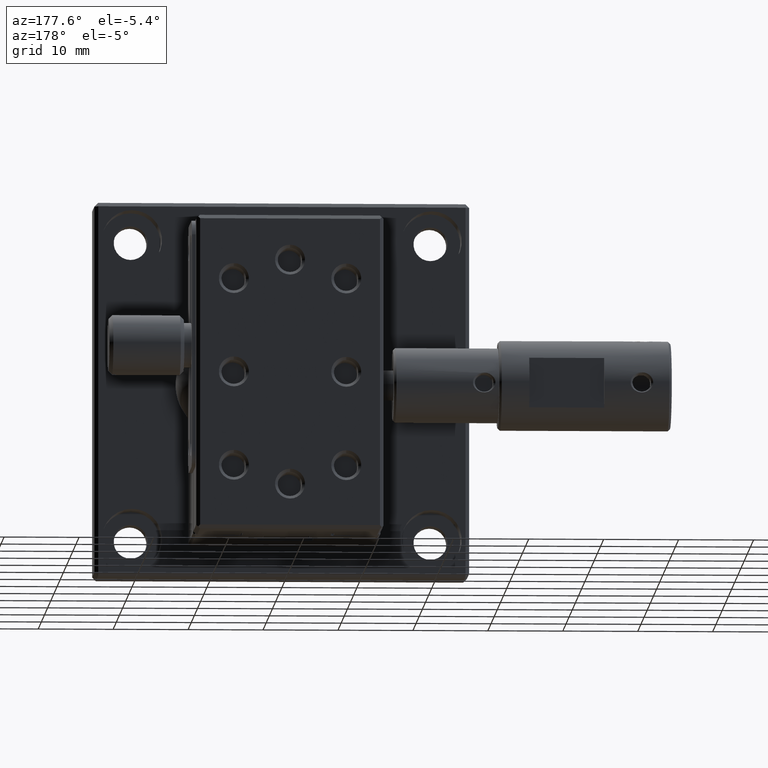
[diagram: clean part render]
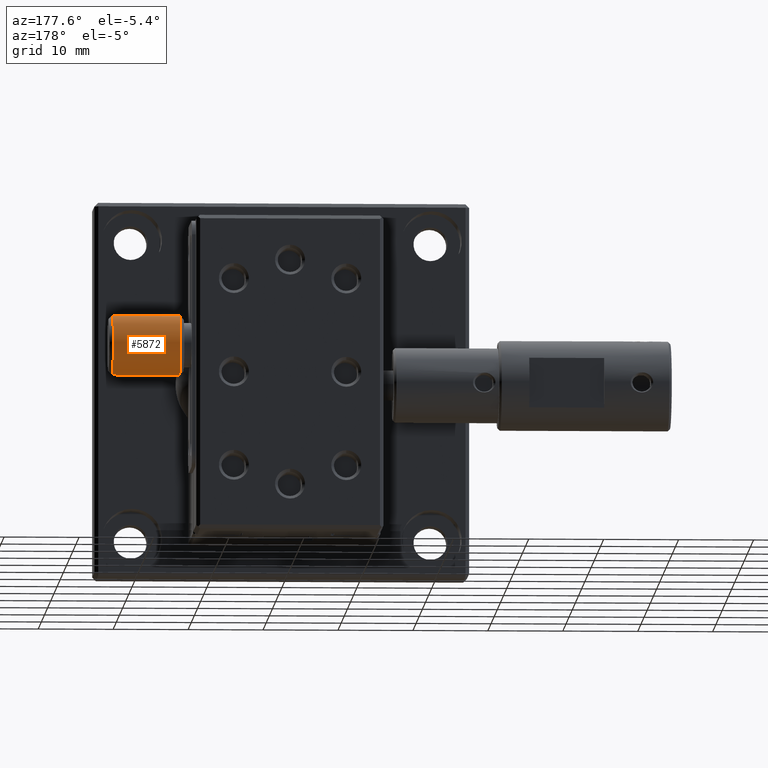
[diagram: same view with one face highlighted and labeled with its STEP entity id]
A machine part, auxiliary view. The second image highlights one B-rep face of the part: STEP entity #5872.
In plain terms, the highlighted cylindrical surface (bore or boss wall) has radius 4 mm, axis along (1, 0, 0).
Its self-contained STEP definition (entity closure, byte-faithful):
#66 = EDGE_CURVE ( 'NONE', #2022, #6184, #3628, .T. ) ;
#86 = CIRCLE ( 'NONE', #8296, 4.000000000000000000 ) ;
#221 = FACE_OUTER_BOUND ( 'NONE', #4535, .T. ) ;
#337 = EDGE_CURVE ( 'NONE', #5713, #1153, #4695, .T. ) ;
#357 = AXIS2_PLACEMENT_3D ( 'NONE', #8109, #2874, #2328 ) ;
#384 = EDGE_CURVE ( 'NONE', #1489, #5310, #2408, .T. ) ;
#557 = DIRECTION ( 'NONE',  ( 0.000000000000000000, 0.000000000000000000, -1.000000000000000000 ) ) ;
#788 = DIRECTION ( 'NONE',  ( -1.000000000000000000, -0.000000000000000000, -0.000000000000000000 ) ) ;
#1073 = AXIS2_PLACEMENT_3D ( 'NONE', #3900, #788, #7789 ) ;
#1153 = VERTEX_POINT ( 'NONE', #6237 ) ;
#1380 = DIRECTION ( 'NONE',  ( 1.000000000000000000, 0.000000000000000000, 0.000000000000000000 ) ) ;
#1461 = ORIENTED_EDGE ( 'NONE', *, *, #6727, .F. ) ;
#1489 = VERTEX_POINT ( 'NONE', #6853 ) ;
#1654 = CARTESIAN_POINT ( 'NONE',  ( 14.50000000005502443, 20.20000000000000284, 0.000000000000000000 ) ) ;
#1712 = CARTESIAN_POINT ( 'NONE',  ( 23.00000000000000000, 20.20000000000000284, 4.000000000000000000 ) ) ;
#1857 = CIRCLE ( 'NONE', #4124, 4.000000000000000000 ) ;
#2022 = VERTEX_POINT ( 'NONE', #4307 ) ;
#2096 = ORIENTED_EDGE ( 'NONE', *, *, #5362, .F. ) ;
#2328 = DIRECTION ( 'NONE',  ( 0.000000000000000000, 0.000000000000000000, -1.000000000000000000 ) ) ;
#2362 = ORIENTED_EDGE ( 'NONE', *, *, #66, .T. ) ;
#2366 = CARTESIAN_POINT ( 'NONE',  ( 23.00000000000000000, 20.70000000000000284, 0.03137303340311391880 ) ) ;
#2408 = CIRCLE ( 'NONE', #3081, 4.000000000000000000 ) ;
#2490 = EDGE_LOOP ( 'NONE', ( #2096 ) ) ;
#2553 = CARTESIAN_POINT ( 'NONE',  ( 23.00000000000000000, 20.70000000000000284, 0.03137303340311389799 ) ) ;
#2784 = EDGE_CURVE ( 'NONE', #1153, #5310, #3219, .T. ) ;
#2874 = DIRECTION ( 'NONE',  ( 1.000000000000000000, 0.000000000000000000, 0.000000000000000000 ) ) ;
#3037 = CARTESIAN_POINT ( 'NONE',  ( 14.50000000005502443, 20.20000000000000284, 4.000000000000000000 ) ) ;
#3081 = AXIS2_PLACEMENT_3D ( 'NONE', #1712, #6220, #4357 ) ;
#3219 = LINE ( 'NONE', #2553, #4858 ) ;
#3261 = FACE_OUTER_BOUND ( 'NONE', #2490, .T. ) ;
#3285 = DIRECTION ( 'NONE',  ( 1.000000000000000000, 0.000000000000000000, -0.000000000000000000 ) ) ;
#3320 = CARTESIAN_POINT ( 'NONE',  ( 23.00000000000000000, 20.20000000000000284, 4.000000000000000000 ) ) ;
#3485 = AXIS2_PLACEMENT_3D ( 'NONE', #7366, #5493, #6725 ) ;
#3575 = VERTEX_POINT ( 'NONE', #8178 ) ;
#3628 = CIRCLE ( 'NONE', #1073, 4.000000000000000000 ) ;
#3900 = CARTESIAN_POINT ( 'NONE',  ( 23.50000000000000000, 20.20000000000000284, 4.000000000000000000 ) ) ;
#3929 = DIRECTION ( 'NONE',  ( -1.000000000000000000, -0.000000000000000000, 0.000000000000000000 ) ) ;
#4124 = AXIS2_PLACEMENT_3D ( 'NONE', #3320, #1380, #5880 ) ;
#4159 = EDGE_CURVE ( 'NONE', #6184, #3575, #5041, .T. ) ;
#4293 = LINE ( 'NONE', #6323, #7205 ) ;
#4307 = CARTESIAN_POINT ( 'NONE',  ( 23.49999999999782929, 19.70000000000000284, 0.03137303340390137224 ) ) ;
#4356 = DIRECTION ( 'NONE',  ( -1.000000000000000000, -0.000000000000000000, -0.000000000000000000 ) ) ;
#4357 = DIRECTION ( 'NONE',  ( 0.000000000000000000, 0.000000000000000000, -1.000000000000000000 ) ) ;
#4437 = ORIENTED_EDGE ( 'NONE', *, *, #384, .F. ) ;
#4472 = CARTESIAN_POINT ( 'NONE',  ( 23.49999999999782574, 20.70000000000000284, 7.968626966596101369 ) ) ;
#4535 = EDGE_LOOP ( 'NONE', ( #4437, #7674, #2362, #8197, #1461, #7178, #8055, #5377 ) ) ;
#4695 = CIRCLE ( 'NONE', #3485, 4.000000000000000000 ) ;
#4698 = CARTESIAN_POINT ( 'NONE',  ( 23.00000000000000000, 20.70000000000000284, 7.968626966596889183 ) ) ;
#4770 = VERTEX_POINT ( 'NONE', #4698 ) ;
#4797 = VECTOR ( 'NONE', #3285, 1000.000000000000000 ) ;
#4858 = VECTOR ( 'NONE', #3929, 1000.000000000000000 ) ;
#4976 = DIRECTION ( 'NONE',  ( -1.000000000000000000, -0.000000000000000000, -0.000000000000000000 ) ) ;
#5041 = LINE ( 'NONE', #7585, #6881 ) ;
#5310 = VERTEX_POINT ( 'NONE', #2366 ) ;
#5331 = EDGE_CURVE ( 'NONE', #1489, #2022, #4293, .T. ) ;
#5353 = CYLINDRICAL_SURFACE ( 'NONE', #357, 4.000000000000000000 ) ;
#5362 = EDGE_CURVE ( 'NONE', #7435, #7435, #86, .T. ) ;
#5377 = ORIENTED_EDGE ( 'NONE', *, *, #2784, .T. ) ;
#5493 = DIRECTION ( 'NONE',  ( -1.000000000000000000, -0.000000000000000000, -0.000000000000000000 ) ) ;
#5713 = VERTEX_POINT ( 'NONE', #4472 ) ;
#5845 = LINE ( 'NONE', #6489, #4797 ) ;
#5872 = ADVANCED_FACE ( 'NONE', ( #3261, #221 ), #5353, .T. ) ;
#5880 = DIRECTION ( 'NONE',  ( 0.000000000000000000, 0.000000000000000000, -1.000000000000000000 ) ) ;
#6149 = EDGE_CURVE ( 'NONE', #4770, #5713, #5845, .T. ) ;
#6184 = VERTEX_POINT ( 'NONE', #7120 ) ;
#6220 = DIRECTION ( 'NONE',  ( 1.000000000000000000, 0.000000000000000000, 0.000000000000000000 ) ) ;
#6237 = CARTESIAN_POINT ( 'NONE',  ( 23.49999999999704414, 20.70000000000000284, 0.03137303340311391880 ) ) ;
#6323 = CARTESIAN_POINT ( 'NONE',  ( 23.00000000000000000, 19.70000000000000284, 0.03137303340311307920 ) ) ;
#6489 = CARTESIAN_POINT ( 'NONE',  ( 23.00000000000000000, 20.70000000000000284, 7.968626966596890959 ) ) ;
#6725 = DIRECTION ( 'NONE',  ( 0.000000000000000000, 0.000000000000000000, -1.000000000000000000 ) ) ;
#6727 = EDGE_CURVE ( 'NONE', #4770, #3575, #1857, .T. ) ;
#6853 = CARTESIAN_POINT ( 'NONE',  ( 23.00000000000000000, 19.70000000000000284, 0.03137303340311350941 ) ) ;
#6881 = VECTOR ( 'NONE', #4356, 1000.000000000000000 ) ;
#7120 = CARTESIAN_POINT ( 'NONE',  ( 23.49999999999704414, 19.70000000000000284, 7.968626966596889183 ) ) ;
#7178 = ORIENTED_EDGE ( 'NONE', *, *, #6149, .T. ) ;
#7205 = VECTOR ( 'NONE', #7604, 1000.000000000000000 ) ;
#7366 = CARTESIAN_POINT ( 'NONE',  ( 23.50000000000000000, 20.20000000000000284, 4.000000000000000000 ) ) ;
#7435 = VERTEX_POINT ( 'NONE', #1654 ) ;
#7585 = CARTESIAN_POINT ( 'NONE',  ( 23.00000000000000000, 19.70000000000000284, 7.968626966596890959 ) ) ;
#7604 = DIRECTION ( 'NONE',  ( 1.000000000000000000, 0.000000000000000000, 0.000000000000000000 ) ) ;
#7674 = ORIENTED_EDGE ( 'NONE', *, *, #5331, .T. ) ;
#7789 = DIRECTION ( 'NONE',  ( 0.000000000000000000, 8.673617379884035472E-16, -1.000000000000000000 ) ) ;
#8055 = ORIENTED_EDGE ( 'NONE', *, *, #337, .T. ) ;
#8109 = CARTESIAN_POINT ( 'NONE',  ( 24.00000000000000000, 20.20000000000000284, 4.000000000000000000 ) ) ;
#8178 = CARTESIAN_POINT ( 'NONE',  ( 23.00000000000000000, 19.70000000000000284, 7.968626966596889183 ) ) ;
#8197 = ORIENTED_EDGE ( 'NONE', *, *, #4159, .T. ) ;
#8296 = AXIS2_PLACEMENT_3D ( 'NONE', #3037, #4976, #557 ) ;